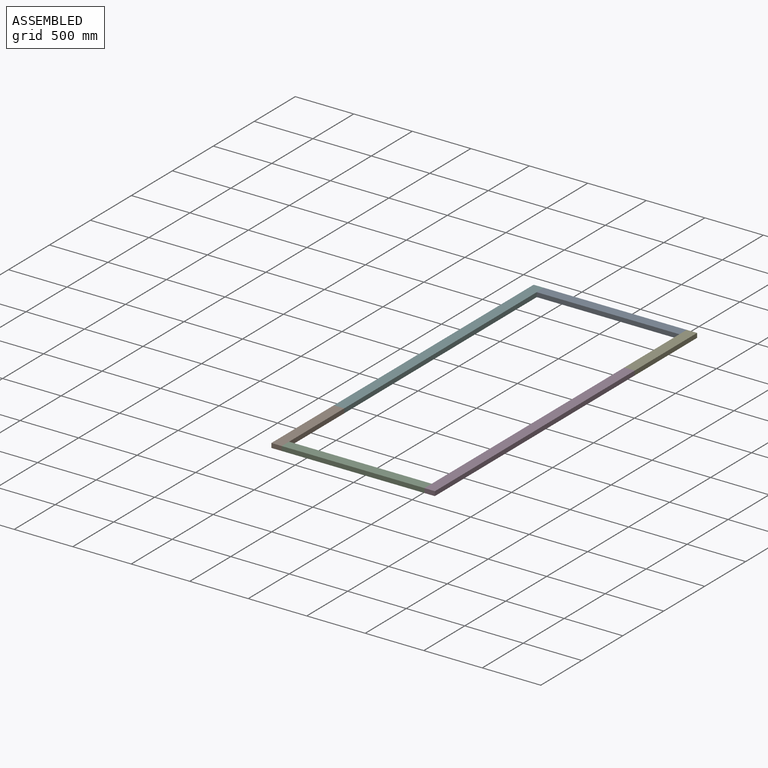
[diagram: assembled view]
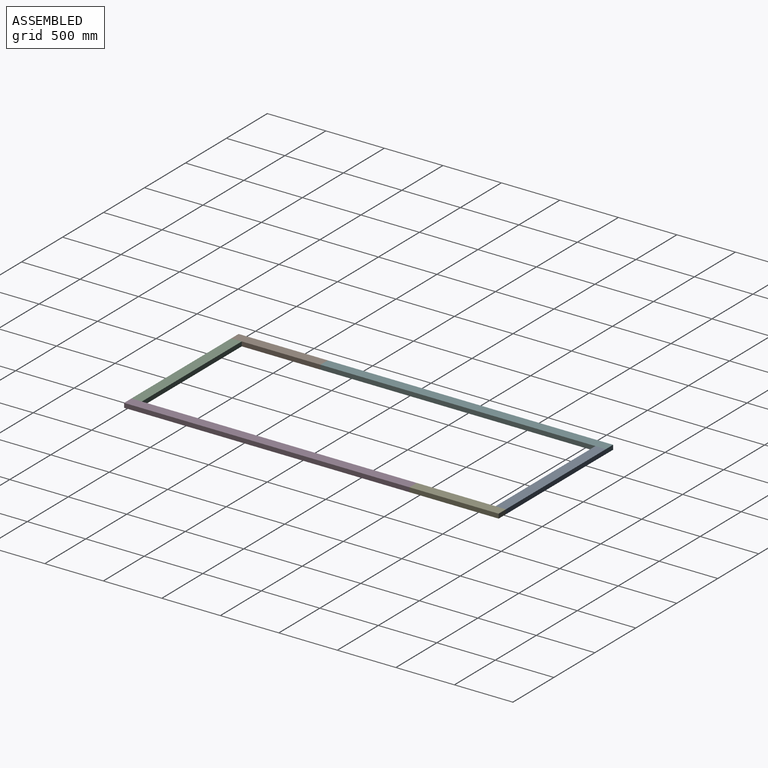
[diagram: assembled view, second angle]
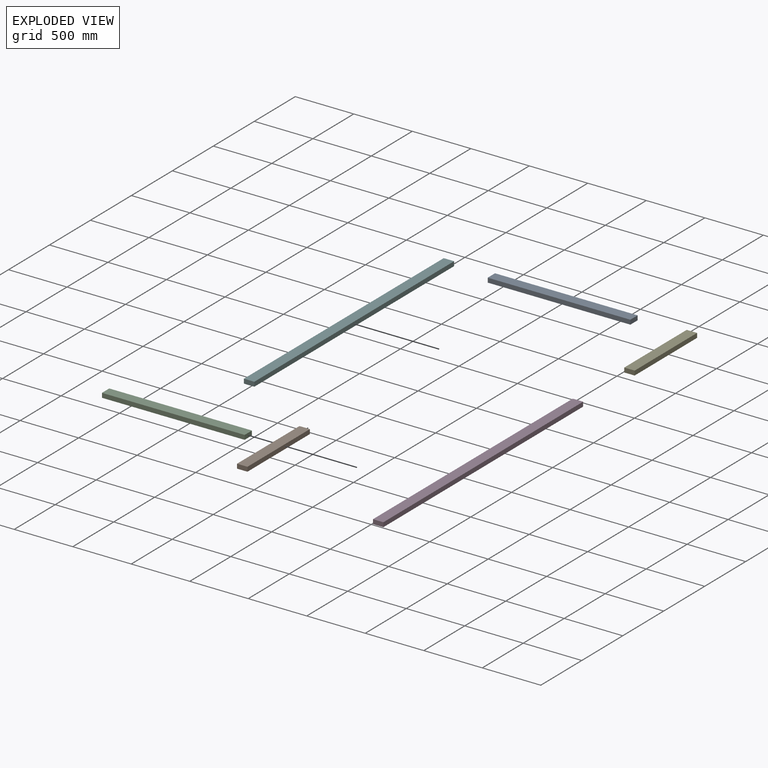
[diagram: exploded view]
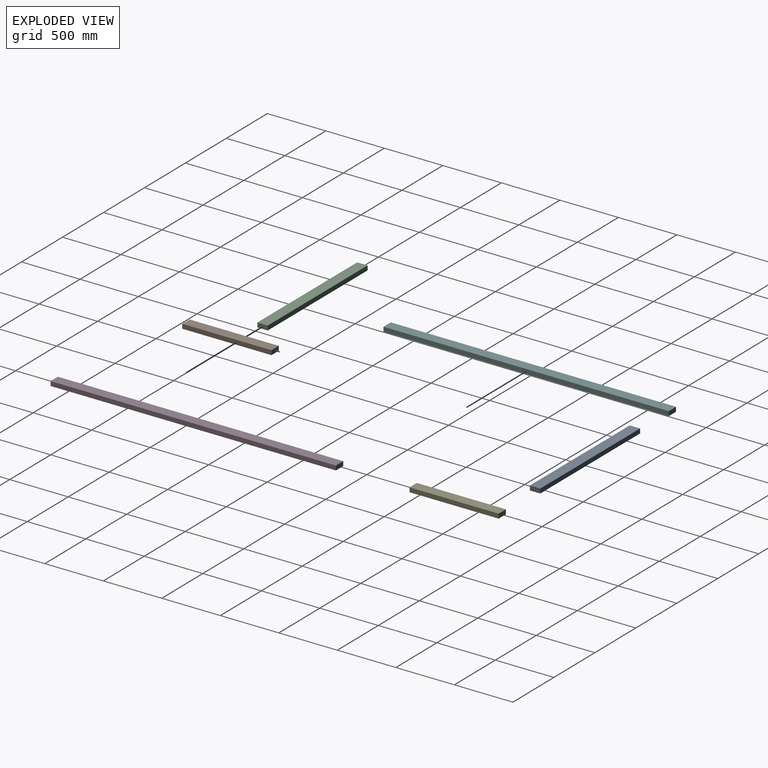
[diagram: exploded view, second angle]
ASSEMBLY  parts=6 mates=5
PART A: 6 faces, bbox 1219.2x88.9x38.1 mm
  f0: plane 1219.2x38.1mm, normal (0,1,0), area 46451.5mm2, adj f1,f3,f4,f5
  f1: plane 88.9x38.1mm, normal (-1,0,0), area 3387.1mm2, adj f0,f2,f4,f5
  f2: plane 1219.2x38.1mm, normal (0,-1,0), area 46451.5mm2, adj f1,f3,f4,f5
  f3: plane 88.9x38.1mm, normal (1,0,0), area 3387.1mm2, adj f0,f2,f4,f5
  f4: plane 1219.2x88.9mm, normal (0,0,1), area 108386.9mm2, adj f0,f1,f2,f3
  f5: plane 1219.2x88.9mm, normal (0,0,-1), area 108386.9mm2, adj f0,f1,f2,f3
PART B: 6 faces, bbox 762x88.9x38.1 mm
  f0: plane 88.9x38.1mm, normal (-1,0,0), area 3387.1mm2, adj f1,f3,f4,f5
  f1: plane 762x38.1mm, normal (0,-1,0), area 29032.2mm2, adj f0,f2,f4,f5
  f2: plane 88.9x38.1mm, normal (1,0,0), area 3387.1mm2, adj f1,f3,f4,f5
  f3: plane 762x38.1mm, normal (0,1,0), area 29032.2mm2, adj f0,f2,f4,f5
  f4: plane 762x88.9mm, normal (0,0,1), area 67741.8mm2, adj f0,f1,f2,f3
  f5: plane 762x88.9mm, normal (0,0,-1), area 67741.8mm2, adj f0,f1,f2,f3
PART C: same geometry as A
PART D: 6 faces, bbox 2438.4x88.9x38.1 mm
  f0: plane 88.9x38.1mm, normal (-1,0,0), area 3387.1mm2, adj f1,f3,f4,f5
  f1: plane 2438.4x38.1mm, normal (0,-1,0), area 92903mm2, adj f0,f2,f4,f5
  f2: plane 88.9x38.1mm, normal (1,0,0), area 3387.1mm2, adj f1,f3,f4,f5
  f3: plane 2438.4x38.1mm, normal (0,1,0), area 92903mm2, adj f0,f2,f4,f5
  f4: plane 2438.4x88.9mm, normal (0,0,1), area 216773.8mm2, adj f0,f1,f2,f3
  f5: plane 2438.4x88.9mm, normal (0,0,-1), area 216773.8mm2, adj f0,f1,f2,f3
PART E: same geometry as B
PART F: same geometry as D
PLACE A rot(axis=(-1,0,0),180deg) t=(-237.9,1448.89,40.04)mm
PLACE B rot(axis=(0.71,0.71,0),180deg) t=(-895.23,-1053.54,39.37)mm
PLACE C rot(axis=(-1,0,0),180deg) t=(-237.9,-1662.61,40.04)mm
PLACE D rot(axis=(-0.71,0.71,0),180deg) t=(1748.17,577.44,42.07)mm
PLACE E rot(axis=(0.71,0.71,0),180deg) t=(412.87,1384.86,40.7)mm
PLACE F rot(axis=(-0.71,0.71,0),180deg) t=(440.07,1339.44,40.73)mm
MATE fastened A.f1 <-> F.f1  axis (-1,0,0) through (-643.66,1698.7,20.57)mm
MATE fastened F.f2 <-> B.f2  axis (0,-1,0) through (-688.11,-695.25,20.53)mm
MATE fastened D.f0 <-> E.f0  axis (0,1,0) through (619.99,981.15,21.87)mm
MATE fastened D.f3 <-> C.f3  axis (-1,0,0) through (575.54,-238.05,21.82)mm
MATE fastened A.f3 <-> E.f1  axis (1,0,0) through (575.54,1698.7,21.82)mm
